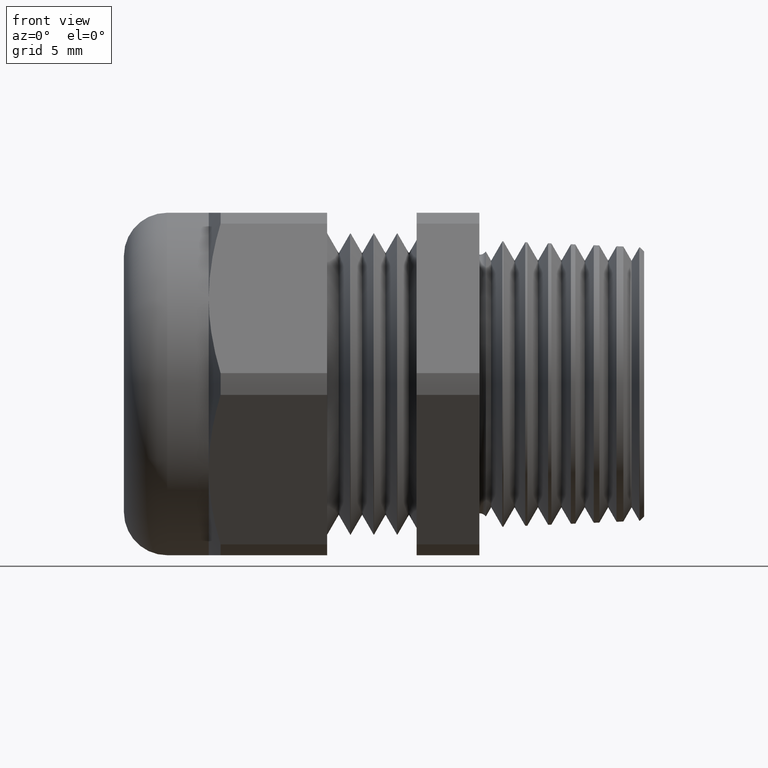
[diagram: clean part render]
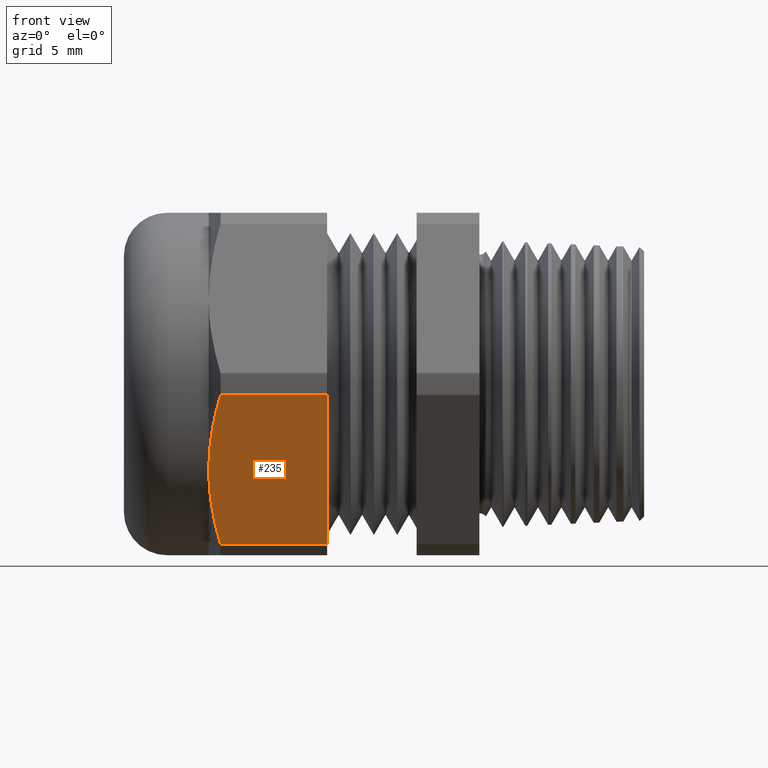
[diagram: same view with one face highlighted and labeled with its STEP entity id]
A machine part, front view. The second image highlights one B-rep face of the part: STEP entity #235.
In plain terms, the highlighted planar face has unit normal (0, -0.866, -0.5).
Its self-contained STEP definition (entity closure, byte-faithful):
#235 = ADVANCED_FACE ( 'NONE', ( #1547 ), #1546, .T. ) ;
#236 = EDGE_LOOP ( 'NONE', ( #237, #238, #241, #243, #244 ) ) ;
#237 = ORIENTED_EDGE ( 'NONE', *, *, #3490, .F. ) ;
#238 = ORIENTED_EDGE ( 'NONE', *, *, #239, .T. ) ;
#239 = EDGE_CURVE ( 'NONE', #3469, #240, #1541, .T. ) ;
#240 = VERTEX_POINT ( 'NONE', #1598 ) ;
#241 = ORIENTED_EDGE ( 'NONE', *, *, #242, .T. ) ;
#242 = EDGE_CURVE ( 'NONE', #240, #3486, #1591, .T. ) ;
#243 = ORIENTED_EDGE ( 'NONE', *, *, #3504, .T. ) ;
#244 = ORIENTED_EDGE ( 'NONE', *, *, #245, .T. ) ;
#245 = EDGE_CURVE ( 'NONE', #3505, #3487, #1590, .T. ) ;
#1541 = B_SPLINE_CURVE_WITH_KNOTS ( 'NONE', 3,
 ( #1597, #1596, #1595, #1594, #1593, #1592 ),
 .UNSPECIFIED., .F., .F.,
 ( 4, 2, 4 ),
 ( 2.361309237117795200E-007, 0.003425884400195741300, 0.006851532669467770700 ),
 .UNSPECIFIED. ) ;
#1542 = DIRECTION ( 'NONE',  ( 0.0000000000000000000, 0.5000000000000003300, -0.8660254037844384900 ) ) ;
#1543 = DIRECTION ( 'NONE',  ( 0.0000000000000000000, -0.8660254037844384900, -0.5000000000000003300 ) ) ;
#1544 = CARTESIAN_POINT ( 'NONE',  ( -2.533243884661831900, -0.5926543782626886300, -0.03349250552087959500 ) ) ;
#1545 = AXIS2_PLACEMENT_3D ( 'NONE', #1544, #1543, #1542 ) ;
#1546 = PLANE ( 'NONE',  #1545 ) ;
#1547 = FACE_OUTER_BOUND ( 'NONE', #236, .T. ) ;
#1579 = DIRECTION ( 'NONE',  ( 0.0000000000000000000, -0.5000000000000003300, 0.8660254037844383700 ) ) ;
#1580 = VECTOR ( 'NONE', #1579, 39.37007874015748100 ) ;
#1581 = CARTESIAN_POINT ( 'NONE',  ( -0.8007805228795398200, -0.3253325497488162000, -0.4965074944791207400 ) ) ;
#1582 = CARTESIAN_POINT ( 'NONE',  ( -0.8121583111907523200, -0.3472125816136489300, -0.4586101676180044400 ) ) ;
#1583 = CARTESIAN_POINT ( 'NONE',  ( -0.8214003591281858800, -0.3692675418263460800, -0.4204098559707025700 ) ) ;
#1584 = CARTESIAN_POINT ( 'NONE',  ( -0.8309221305962483100, -0.4027055574402840200, -0.3624935140230812800 ) ) ;
#1585 = CARTESIAN_POINT ( 'NONE',  ( -0.8333721404368326100, -0.4139108550001430200, -0.3430853693354775600 ) ) ;
#1586 = CARTESIAN_POINT ( 'NONE',  ( -0.8366665420851499000, -0.4364529586652056700, -0.3040413004781047900 ) ) ;
#1587 = CARTESIAN_POINT ( 'NONE',  ( -0.8374999999999999100, -0.4477627782903754200, -0.2844521182628711500 ) ) ;
#1588 = CARTESIAN_POINT ( 'NONE',  ( -0.8375000000000000200, -0.4589934640057521900, -0.2650000000000003500 ) ) ;
#1589 = CARTESIAN_POINT ( 'NONE',  ( -0.4708333333333333300, -0.3423934640057522100, -0.4669571241625314300 ) ) ;
#1590 = LINE ( 'NONE', #1589, #1580 ) ;
#1591 = B_SPLINE_CURVE_WITH_KNOTS ( 'NONE', 3,
 ( #1588, #1587, #1586, #1585, #1584, #1583, #1582, #1581 ),
 .UNSPECIFIED., .F., .F.,
 ( 4, 2, 2, 4 ),
 ( 0.006851532669467770700, 0.008552772946843107500, 0.01025401322421844900, 0.01365649377896912800 ),
 .UNSPECIFIED. ) ;
#1592 = CARTESIAN_POINT ( 'NONE',  ( -0.8375000000000000200, -0.4589934640057521900, -0.2650000000000003500 ) ) ;
#1593 = CARTESIAN_POINT ( 'NONE',  ( -0.8375000000000000200, -0.4816077763961066900, -0.2258308619616723700 ) ) ;
#1594 = CARTESIAN_POINT ( 'NONE',  ( -0.8341133144435343100, -0.5040353240607423600, -0.1869852099173504300 ) ) ;
#1595 = CARTESIAN_POINT ( 'NONE',  ( -0.8214552305450428800, -0.5485658965634914200, -0.1098559958524598200 ) ) ;
#1596 = CARTESIAN_POINT ( 'NONE',  ( -0.8122123161882932600, -0.5706704922010212800, -0.07156971312749231500 ) ) ;
#1597 = CARTESIAN_POINT ( 'NONE',  ( -0.8007805228795398200, -0.5926543782626886300, -0.03349250552087958100 ) ) ;
#1598 = CARTESIAN_POINT ( 'NONE',  ( -0.8375000000000000200, -0.4589934640057521900, -0.2650000000000003500 ) ) ;
#3218 = CARTESIAN_POINT ( 'NONE',  ( -0.8007805228795398200, -0.5926543782626886300, -0.03349250552087958100 ) ) ;
#3225 = LINE ( 'NONE', #3290, #3289 ) ;
#3235 = CARTESIAN_POINT ( 'NONE',  ( -0.4708333333333333300, -0.5926543782626886300, -0.03349250552087959500 ) ) ;
#3240 = CARTESIAN_POINT ( 'NONE',  ( -0.8007805228795398200, -0.3253325497488162000, -0.4965074944791207400 ) ) ;
#3262 = CARTESIAN_POINT ( 'NONE',  ( -0.4708333333333333300, -0.3253325497488162000, -0.4965074944791207400 ) ) ;
#3263 = DIRECTION ( 'NONE',  ( 1.000000000000000000, 0.0000000000000000000, 0.0000000000000000000 ) ) ;
#3264 = VECTOR ( 'NONE', #3263, 39.37007874015748100 ) ;
#3265 = CARTESIAN_POINT ( 'NONE',  ( -2.533243884661831900, -0.3253325497488162000, -0.4965074944791207400 ) ) ;
#3270 = LINE ( 'NONE', #3265, #3264 ) ;
#3288 = DIRECTION ( 'NONE',  ( 1.000000000000000000, 0.0000000000000000000, 0.0000000000000000000 ) ) ;
#3289 = VECTOR ( 'NONE', #3288, 39.37007874015748100 ) ;
#3290 = CARTESIAN_POINT ( 'NONE',  ( -2.533243884661831900, -0.5926543782626886300, -0.03349250552087959500 ) ) ;
#3469 = VERTEX_POINT ( 'NONE', #3218 ) ;
#3486 = VERTEX_POINT ( 'NONE', #3240 ) ;
#3487 = VERTEX_POINT ( 'NONE', #3235 ) ;
#3490 = EDGE_CURVE ( 'NONE', #3469, #3487, #3225, .T. ) ;
#3504 = EDGE_CURVE ( 'NONE', #3486, #3505, #3270, .T. ) ;
#3505 = VERTEX_POINT ( 'NONE', #3262 ) ;